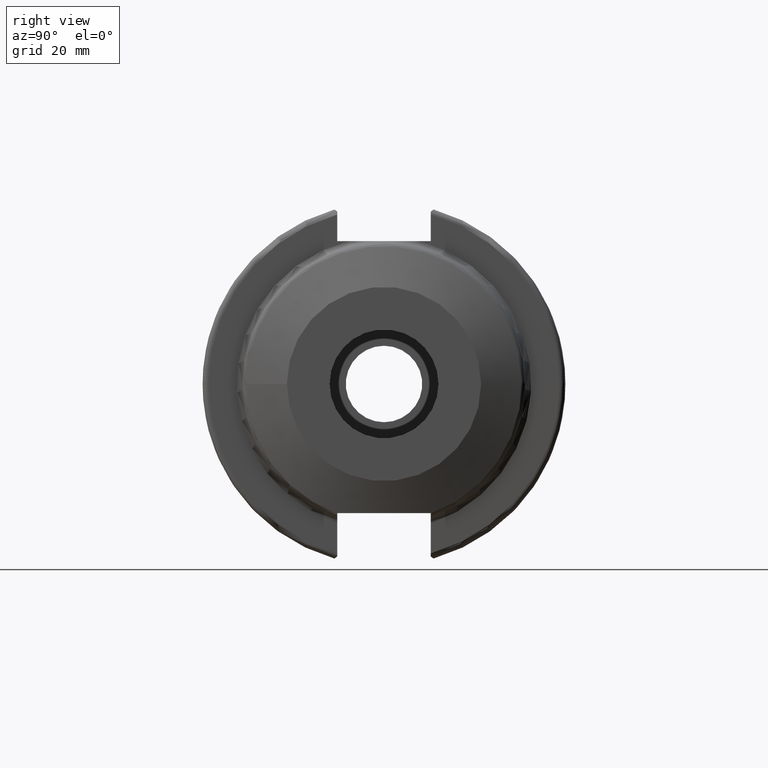
[diagram: clean part render]
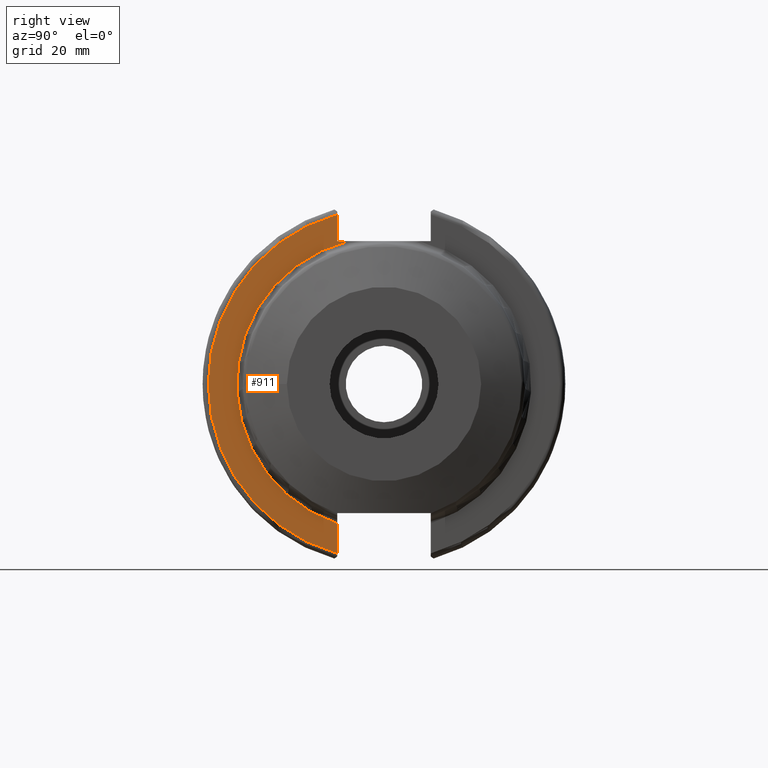
[diagram: same view with one face highlighted and labeled with its STEP entity id]
A machine part, right view. The second image highlights one B-rep face of the part: STEP entity #911.
In plain terms, the highlighted planar face has unit normal (1, 0, 0).
Its self-contained STEP definition (entity closure, byte-faithful):
#50=LINE('',#1464,#106);
#51=LINE('',#1466,#107);
#52=LINE('',#1469,#108);
#106=VECTOR('',#1118,10.);
#107=VECTOR('',#1119,10.);
#108=VECTOR('',#1122,10.);
#172=PLANE('',#994);
#200=FACE_OUTER_BOUND('',#253,.T.);
#253=EDGE_LOOP('',(#648,#649,#650,#651,#652));
#311=CIRCLE('',#991,25.75);
#314=CIRCLE('',#995,30.75);
#396=VERTEX_POINT('',#1435);
#398=VERTEX_POINT('',#1447);
#400=VERTEX_POINT('',#1463);
#401=VERTEX_POINT('',#1465);
#402=VERTEX_POINT('',#1467);
#495=EDGE_CURVE('',#396,#398,#311,.T.);
#499=EDGE_CURVE('',#396,#400,#50,.T.);
#500=EDGE_CURVE('',#400,#401,#51,.T.);
#501=EDGE_CURVE('',#402,#401,#314,.T.);
#502=EDGE_CURVE('',#402,#398,#52,.T.);
#648=ORIENTED_EDGE('',*,*,#495,.F.);
#649=ORIENTED_EDGE('',*,*,#499,.T.);
#650=ORIENTED_EDGE('',*,*,#500,.T.);
#651=ORIENTED_EDGE('',*,*,#501,.F.);
#652=ORIENTED_EDGE('',*,*,#502,.T.);
#911=ADVANCED_FACE('',(#200),#172,.T.);
#991=AXIS2_PLACEMENT_3D('',#1448,#1110,#1111);
#994=AXIS2_PLACEMENT_3D('',#1462,#1116,#1117);
#995=AXIS2_PLACEMENT_3D('',#1468,#1120,#1121);
#1110=DIRECTION('center_axis',(1.,0.,0.));
#1111=DIRECTION('ref_axis',(0.,6.12323399573677E-17,1.));
#1116=DIRECTION('center_axis',(1.,0.,0.));
#1117=DIRECTION('ref_axis',(0.,0.,-1.));
#1118=DIRECTION('',(0.,-1.,0.));
#1119=DIRECTION('',(0.,0.,1.));
#1120=DIRECTION('center_axis',(-1.,0.,0.));
#1121=DIRECTION('ref_axis',(0.,-1.,1.60812264967664E-16));
#1122=DIRECTION('',(0.,0.,1.));
#1435=CARTESIAN_POINT('',(19.05,-6.16948133962654,25.));
#1447=CARTESIAN_POINT('',(19.05,-8.19,-24.4128326910254));
#1448=CARTESIAN_POINT('Origin',(19.05,0.,0.));
#1462=CARTESIAN_POINT('Origin',(19.05,0.,0.));
#1463=CARTESIAN_POINT('',(19.05,-8.19,25.));
#1464=CARTESIAN_POINT('',(19.05,0.,25.));
#1465=CARTESIAN_POINT('',(19.05,-8.19,29.6392712461019));
#1466=CARTESIAN_POINT('',(19.05,-8.19,12.5));
#1467=CARTESIAN_POINT('',(19.05,-8.19,-29.6392712461019));
#1468=CARTESIAN_POINT('Origin',(19.05,0.,0.));
#1469=CARTESIAN_POINT('',(19.05,-8.19,-11.3));